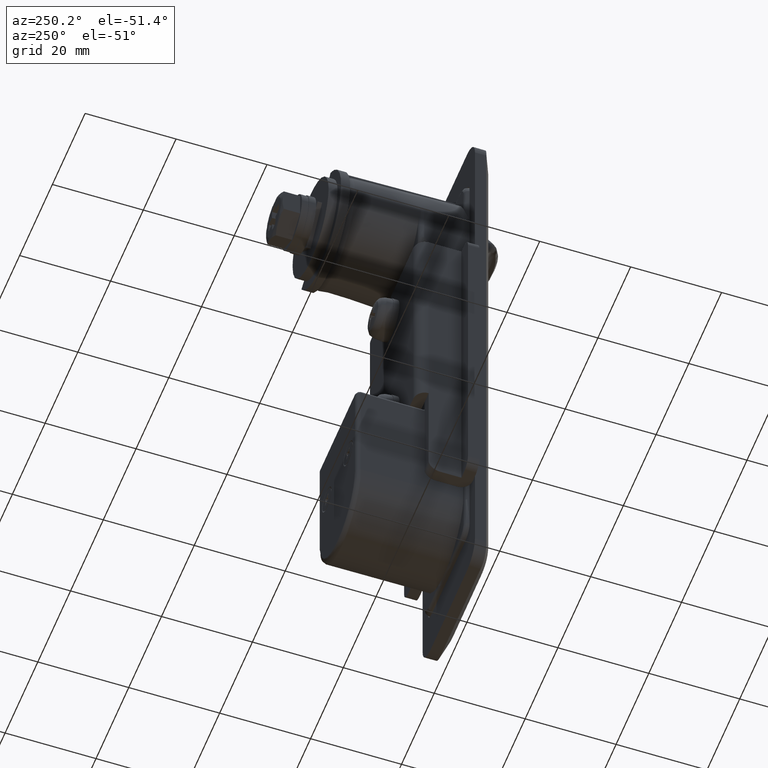
[diagram: clean part render]
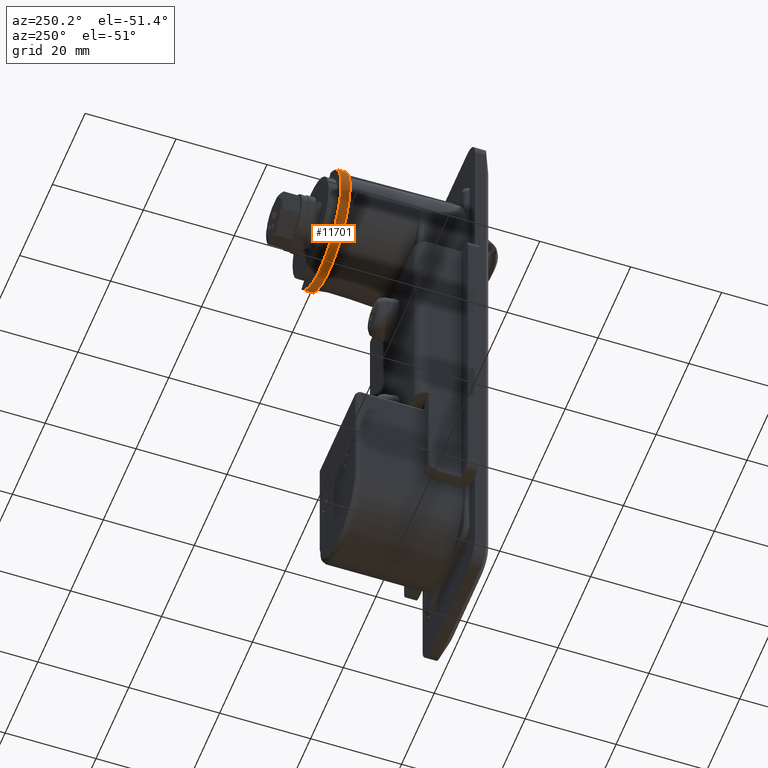
[diagram: same view with one face highlighted and labeled with its STEP entity id]
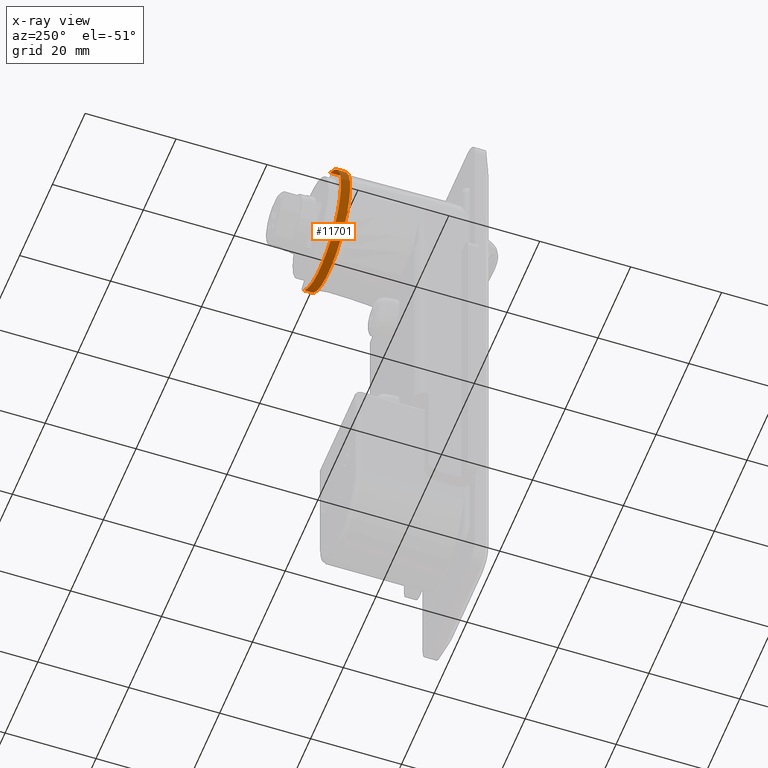
[diagram: x-ray of the same camera — body ghosted, the highlighted face saturated]
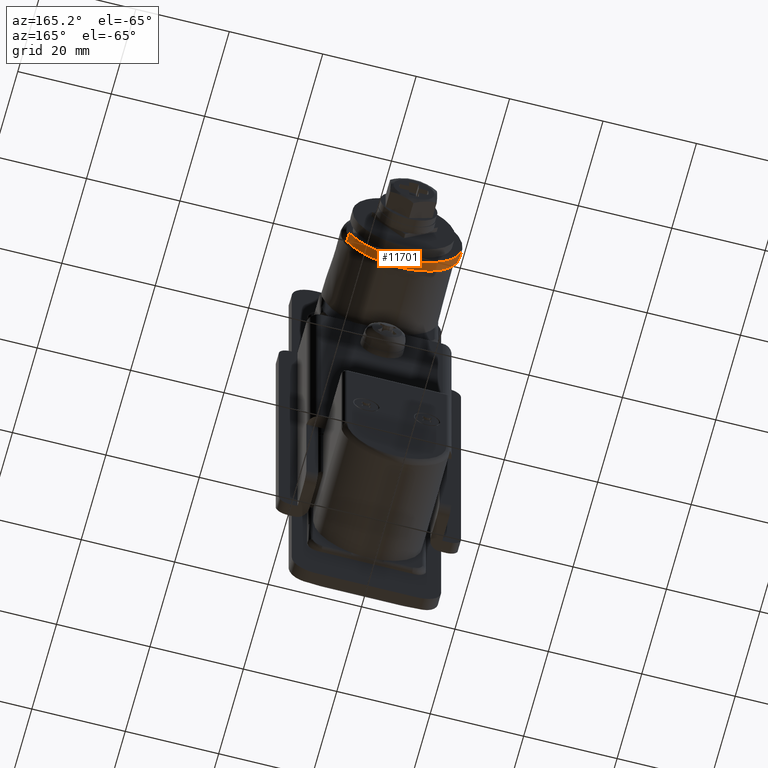
[diagram: same view with one face highlighted and labeled with its STEP entity id]
A machine part, auxiliary view. The second image highlights one B-rep face of the part: STEP entity #11701.
The next image is the same camera in x-ray: the body ghosted, the highlighted face saturated — about 0% of this face is hidden behind the body in this view.
A second angle (auxiliary view) of the same face is appended — the face is thin or edge-on in the first view.
In plain terms, the highlighted face is a freeform B-spline surface patch.
Its self-contained STEP definition (entity closure, byte-faithful):
#11435=CARTESIAN_POINT('',(30.399999999999999,9.273096493882047,-9.203679762381679));
#11436=VERTEX_POINT('',#11435);
#11437=CARTESIAN_POINT('',(30.399999999999999,6.580143004719151,11.246247684173500));
#11438=VERTEX_POINT('',#11437);
#11439=CARTESIAN_POINT('',(30.399999999999999,9.273096493882047,-9.203679762381679));
#11440=CARTESIAN_POINT('',(30.400000000000102,9.975058865191137,-8.501877916048196));
#11441=CARTESIAN_POINT('',(30.399999999999959,11.100485865084011,-7.083132171857647));
#11442=CARTESIAN_POINT('',(30.400000000000020,12.353397464825809,-4.574777620105524));
#11443=CARTESIAN_POINT('',(30.400000000000020,12.937531847044379,-2.339362233282195));
#11444=CARTESIAN_POINT('',(30.399999999999991,13.135154149346540,0.013707005825247));
#11445=CARTESIAN_POINT('',(30.400000000000009,12.988300274433950,2.003437578842521));
#11446=CARTESIAN_POINT('',(30.400000000000031,12.413970016623210,4.296104529662185));
#11447=CARTESIAN_POINT('',(30.399999999999970,11.554894086389311,6.234128954709155));
#11448=CARTESIAN_POINT('',(30.400000000000070,10.414439880653660,7.940661498994900));
#11449=CARTESIAN_POINT('',(30.399999999999910,8.889079901262923,9.662337024317582));
#11450=CARTESIAN_POINT('',(30.400000000000219,7.547412980983630,10.688171356454490));
#11451=CARTESIAN_POINT('',(30.399999999999999,6.580143004719151,11.246247684173500));
#11452=B_SPLINE_CURVE_WITH_KNOTS('',3,(#11439,#11440,#11441,#11442,#11443,#11444,#11445,#11446,#11447,#11448,#11449,#11450,#11451),.UNSPECIFIED.,.F.,.U.,(4,1,1,1,1,1,1,1,1,1,4),(0.000000061240947,2.977830772889686,5.397344326576505,8.375224995090123,9.864161847110841,12.469714382705639,14.330860242440560,16.936504328292799,18.797666910797119,20.472724306961961,23.822780811222088),.UNSPECIFIED.);
#11453=EDGE_CURVE('',#11436,#11438,#11452,.T.);
#11455=CARTESIAN_POINT('',(30.399999999999999,-11.177247506932121,-6.513875004002400));
#11456=VERTEX_POINT('',#11455);
#11457=CARTESIAN_POINT('',(30.399999999999999,-11.177247506932121,-6.513875004002400));
#11458=CARTESIAN_POINT('',(30.400000000000031,-10.804958871107679,-7.158556090140873));
#11459=CARTESIAN_POINT('',(30.399999999999920,-9.984866668001045,-8.332639578100363));
#11460=CARTESIAN_POINT('',(30.400000000000070,-8.635964151833496,-9.711791195928578));
#11461=CARTESIAN_POINT('',(30.399999999999970,-7.212878953024023,-10.817360508695449));
#11462=CARTESIAN_POINT('',(30.399999999999981,-5.818938301344362,-11.637153541702659));
#11463=CARTESIAN_POINT('',(30.400000000000041,-4.103929796770240,-12.367916691233420));
#11464=CARTESIAN_POINT('',(30.399999999999920,-2.178187538271497,-12.879487201112131));
#11465=CARTESIAN_POINT('',(30.400000000000411,-0.069277857052257,-13.065141502562700));
#11466=CARTESIAN_POINT('',(30.399999999999761,2.164383992144215,-12.909315271262461));
#11467=CARTESIAN_POINT('',(30.400000000000350,4.646710060600751,-12.298343187418110));
#11468=CARTESIAN_POINT('',(30.399999999999320,7.162519610128216,-11.041179334881470));
#11469=CARTESIAN_POINT('',(30.400000000000439,8.659064414040595,-9.817923725904686));
#11470=CARTESIAN_POINT('',(30.399999999999999,9.273096493882047,-9.203679762381679));
#11471=B_SPLINE_CURVE_WITH_KNOTS('',3,(#11457,#11458,#11459,#11460,#11461,#11462,#11463,#11464,#11465,#11466,#11467,#11468,#11469,#11470),.UNSPECIFIED.,.F.,.U.,(4,1,1,1,1,1,1,1,1,1,1,4),(0.000000061239515,2.233374705147092,4.280645110357440,5.769579301265761,7.630755277553597,9.119696094475335,11.353072671628279,13.586396997870740,15.447566858980050,18.053203930032112,21.217197105087600,23.822784328207060),.UNSPECIFIED.);
#11472=EDGE_CURVE('',#11456,#11436,#11471,.T.);
#11525=CARTESIAN_POINT('',(32.399999999999999,-11.177247506932121,-6.513875004002400));
#11526=VERTEX_POINT('',#11525);
#11527=CARTESIAN_POINT('',(32.399999999999999,9.273096493882047,-9.203679762381679));
#11528=VERTEX_POINT('',#11527);
#11529=CARTESIAN_POINT('',(32.399999999999999,-11.177247506932121,-6.513875004002400));
#11530=CARTESIAN_POINT('',(32.400000000000041,-10.804959414284291,-7.158556780631367));
#11531=CARTESIAN_POINT('',(32.399999999999942,-9.984862478714181,-8.332634885975871));
#11532=CARTESIAN_POINT('',(32.399999999999970,-8.722994947655947,-9.622814767650990));
#11533=CARTESIAN_POINT('',(32.400000000000119,-7.316885147024980,-10.747824523369840));
#11534=CARTESIAN_POINT('',(32.399999999999807,-5.507630110428545,-11.847278806248630));
#11535=CARTESIAN_POINT('',(32.400000000000297,-3.157436930833998,-12.693226746496650));
#11536=CARTESIAN_POINT('',(32.399999999999991,-0.446419071193289,-13.089320834722930));
#11537=CARTESIAN_POINT('',(32.399999999999558,2.047525492905401,-12.951227714935490));
#11538=CARTESIAN_POINT('',(32.400000000000787,4.758520634376628,-12.242352714384589));
#11539=CARTESIAN_POINT('',(32.399999999999338,7.162513966649102,-11.041212342440740));
#11540=CARTESIAN_POINT('',(32.400000000000333,8.659069949108096,-9.817924196841073));
#11541=CARTESIAN_POINT('',(32.399999999999999,9.273096493882047,-9.203679762381679));
#11542=B_SPLINE_CURVE_WITH_KNOTS('',3,(#11529,#11530,#11531,#11532,#11533,#11534,#11535,#11536,#11537,#11538,#11539,#11540,#11541),.UNSPECIFIED.,.F.,.U.,(4,1,1,1,1,1,1,1,1,1,4),(0.000000061239515,2.233374705147092,4.280645110357440,5.397345123390114,7.630755277553597,10.608624534748380,12.841939614061040,15.819802272416791,18.053203930032112,21.217197105087600,23.822784328207060),.UNSPECIFIED.);
#11543=EDGE_CURVE('',#11526,#11528,#11542,.T.);
#11545=CARTESIAN_POINT('',(32.399999999999999,6.580143004719151,11.246247684173500));
#11546=VERTEX_POINT('',#11545);
#11547=CARTESIAN_POINT('',(32.399999999999999,9.273096493882047,-9.203679762381679));
#11548=CARTESIAN_POINT('',(32.400000000000020,9.799502494813954,-8.677268317491590));
#11549=CARTESIAN_POINT('',(32.399999999999977,10.721420257051310,-7.581326477001431));
#11550=CARTESIAN_POINT('',(32.400000000000041,11.704602297891340,-5.921523079717284));
#11551=CARTESIAN_POINT('',(32.400000000000013,12.500905640903520,-4.031809347252288));
#11552=CARTESIAN_POINT('',(32.400000000000013,13.007528163385990,-1.973325759129502));
#11553=CARTESIAN_POINT('',(32.399999999999999,13.131053712564100,0.264895668007726));
#11554=CARTESIAN_POINT('',(32.399999999999977,12.927783669418350,2.244774008604449));
#11555=CARTESIAN_POINT('',(32.399999999999999,12.504582926949039,3.934069285829064));
#11556=CARTESIAN_POINT('',(32.400000000000013,11.822992780951971,5.669207142859326));
#11557=CARTESIAN_POINT('',(32.400000000000027,10.806541557214111,7.455024849259078));
#11558=CARTESIAN_POINT('',(32.399999999999892,9.087895400045953,9.510391582670367));
#11559=CARTESIAN_POINT('',(32.400000000000233,7.547397044552901,10.688162582087321));
#11560=CARTESIAN_POINT('',(32.399999999999999,6.580143004719151,11.246247684173500));
#11561=B_SPLINE_CURVE_WITH_KNOTS('',3,(#11547,#11548,#11549,#11550,#11551,#11552,#11553,#11554,#11555,#11556,#11557,#11558,#11559,#11560),.UNSPECIFIED.,.F.,.U.,(4,1,1,1,1,1,1,1,1,1,1,4),(0.000000061240947,2.233374375425377,4.280644478403417,5.769578449498042,8.375224995090123,10.608622968567641,12.469714382705639,14.330860242440560,15.819799936930499,18.053201264817481,20.472724306961961,23.822780811222088),.UNSPECIFIED.);
#11562=EDGE_CURVE('',#11528,#11546,#11561,.T.);
#11616=CARTESIAN_POINT('',(32.399999999999999,-11.177247506932121,-6.513875004002400));
#11617=CARTESIAN_POINT('',(30.399999999999999,-11.177247506932121,-6.513875004002400));
#11618=QUASI_UNIFORM_CURVE('',1,(#11616,#11617),.UNSPECIFIED.,.F.,.U.);
#11619=EDGE_CURVE('',#11526,#11456,#11618,.T.);
#11667=CARTESIAN_POINT('',(32.399999999999999,6.580143004719151,11.246247684173500));
#11668=CARTESIAN_POINT('',(30.399999999999999,6.580143004719151,11.246247684173500));
#11669=QUASI_UNIFORM_CURVE('',1,(#11667,#11668),.UNSPECIFIED.,.F.,.U.);
#11670=EDGE_CURVE('',#11546,#11438,#11669,.T.);
#11675=CARTESIAN_POINT('',(32.450000000000003,-11.344701256066140,-6.214918765358883));
#11676=CARTESIAN_POINT('',(30.348749999999999,-11.344701256066140,-6.214918765358883));
#11677=CARTESIAN_POINT('',(32.449999999999996,-2.807116013275000,-21.939671020992691));
#11678=CARTESIAN_POINT('',(30.348749999999992,-2.807116013275000,-21.939671020992691));
#11679=CARTESIAN_POINT('',(32.450000000000003,9.509753155625218,-8.960729263084195));
#11680=CARTESIAN_POINT('',(30.348749999999999,9.509753155625218,-8.960729263084195));
#11681=CARTESIAN_POINT('',(32.449999999999996,21.826622324525438,4.018212494824293));
#11682=CARTESIAN_POINT('',(30.348749999999992,21.826622324525438,4.018212494824293));
#11683=CARTESIAN_POINT('',(32.450000000000003,5.676793300368289,11.721537606065340));
#11684=CARTESIAN_POINT('',(30.348749999999999,5.676793300368289,11.721537606065340));
#11692=(BOUNDED_SURFACE()B_SPLINE_SURFACE(1,2,((#11675,#11677,#11679,#11681,#11683),(#11676,#11678,#11680,#11682,#11684)),.UNSPECIFIED.,.F.,.F.,.U.)B_SPLINE_SURFACE_WITH_KNOTS((2,2),(3,2,3),(0.0,2.101249999999999),(0.0,26.495323373710288,52.990646747420570),.UNSPECIFIED.)GEOMETRIC_REPRESENTATION_ITEM()RATIONAL_B_SPLINE_SURFACE(((1.0,0.587785252292473,1.0,0.587785252292473,1.0),(1.0,0.587785252292473,1.0,0.587785252292473,1.0)))REPRESENTATION_ITEM('')SURFACE());
#11693=ORIENTED_EDGE('',*,*,#11472,.T.);
#11694=ORIENTED_EDGE('',*,*,#11453,.T.);
#11695=ORIENTED_EDGE('',*,*,#11670,.F.);
#11696=ORIENTED_EDGE('',*,*,#11562,.F.);
#11697=ORIENTED_EDGE('',*,*,#11543,.F.);
#11698=ORIENTED_EDGE('',*,*,#11619,.T.);
#11699=EDGE_LOOP('',(#11693,#11694,#11695,#11696,#11697,#11698));
#11700=FACE_OUTER_BOUND('',#11699,.T.);
#11701=ADVANCED_FACE('',(#11700),#11692,.T.);